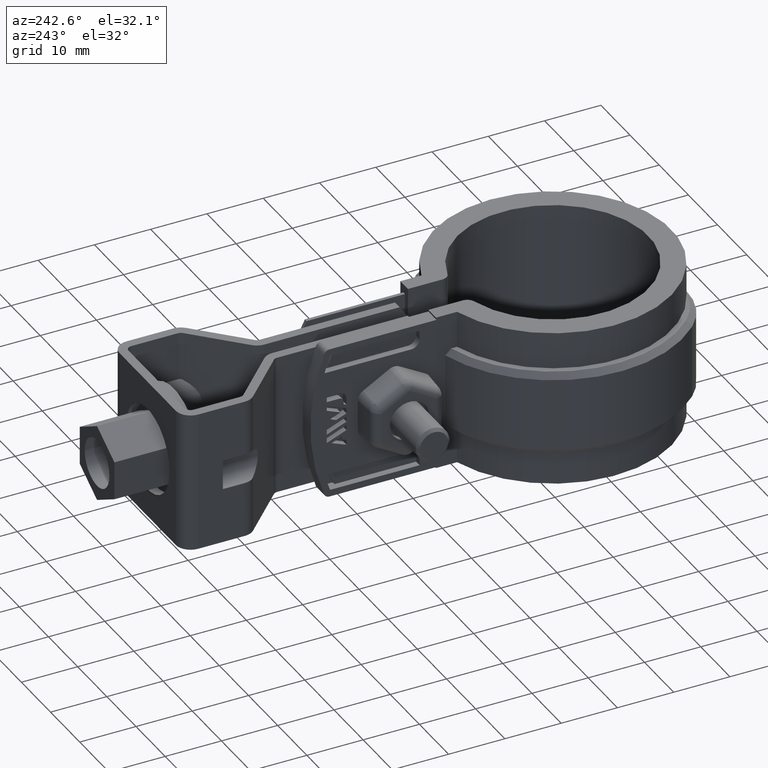
[diagram: clean part render]
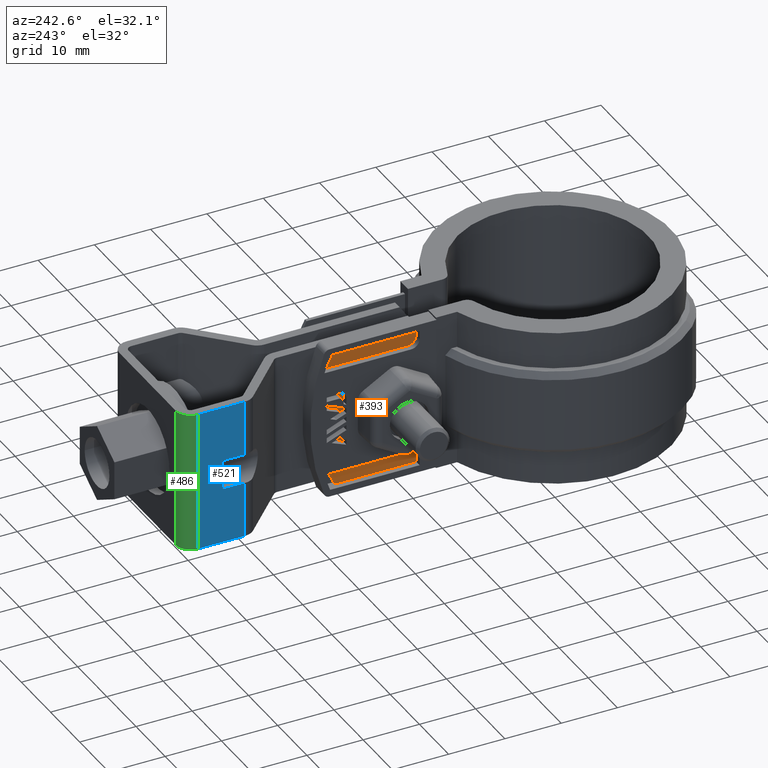
[diagram: same view with three faces highlighted in distinct colors, each labeled with its STEP entity id]
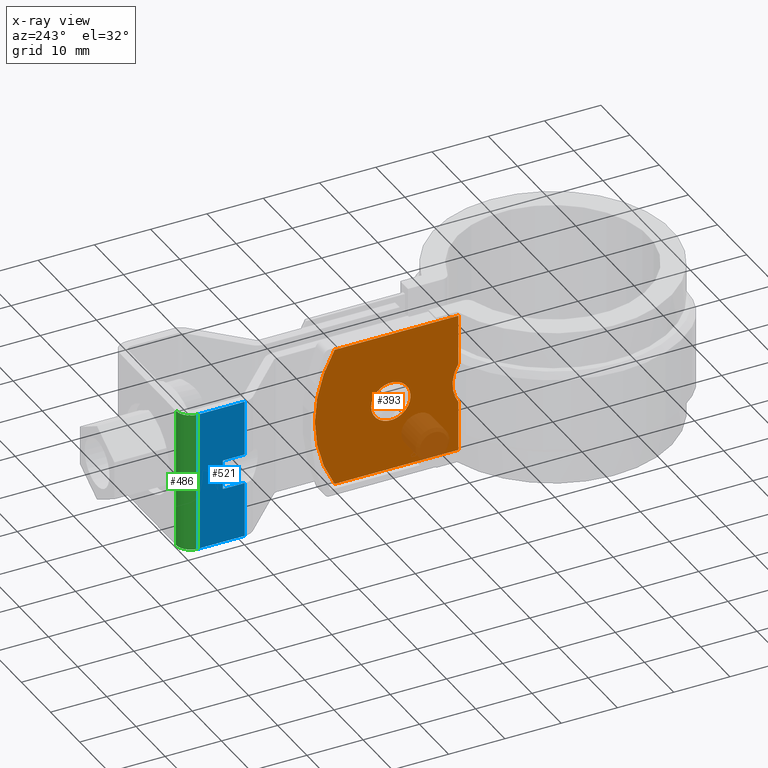
[diagram: x-ray of the same camera — body ghosted, the three highlighted faces saturated]
A machine part, auxiliary view with three faces highlighted in distinct colors.
The next image is the same camera in x-ray (body ghosted, the three faces saturated) — at least one of them is partly hidden behind the body in this view.
Their STEP definitions:

[orange] entity #393 — the highlighted planar face has unit normal (1, -0, 0).
#393 = ADVANCED_FACE( '', ( #757, #758 ), #759, .F. );
#757 = FACE_BOUND( '', #1658, .T. );
#758 = FACE_OUTER_BOUND( '', #1659, .T. );
#759 = PLANE( '', #1660 );
#1658 = EDGE_LOOP( '', ( #3246 ) );
#1659 = EDGE_LOOP( '', ( #3247, #3248, #3249, #3250, #3251, #3252 ) );
#1660 = AXIS2_PLACEMENT_3D( '', #3253, #3254, #3255 );
#3246 = ORIENTED_EDGE( '', *, *, #6229, .F. );
#3247 = ORIENTED_EDGE( '', *, *, #6161, .F. );
#3248 = ORIENTED_EDGE( '', *, *, #6220, .F. );
#3249 = ORIENTED_EDGE( '', *, *, #6135, .F. );
#3250 = ORIENTED_EDGE( '', *, *, #6235, .F. );
#3251 = ORIENTED_EDGE( '', *, *, #6236, .T. );
#3252 = ORIENTED_EDGE( '', *, *, #6237, .F. );
#3253 = CARTESIAN_POINT( '', ( -5.10000000000000, 44.9443584449264, 0.000000000000000 ) );
#3254 = DIRECTION( '', ( 1.00000000000000, -6.12303176911189E-017, 0.000000000000000 ) );
#3255 = DIRECTION( '', ( -6.12303176911189E-017, -1.00000000000000, 0.000000000000000 ) );
#6135 = EDGE_CURVE( '', #7073, #7076, #7077, .T. );
#6161 = EDGE_CURVE( '', #7121, #7123, #7124, .T. );
#6220 = EDGE_CURVE( '', #7076, #7121, #7223, .T. );
#6229 = EDGE_CURVE( '', #7233, #7233, #7234, .F. );
#6235 = EDGE_CURVE( '', #7243, #7073, #7244, .T. );
#6236 = EDGE_CURVE( '', #7243, #7245, #7246, .T. );
#6237 = EDGE_CURVE( '', #7123, #7245, #7247, .T. );
#7073 = VERTEX_POINT( '', #8736 );
#7076 = VERTEX_POINT( '', #8740 );
#7077 = LINE( '', #8741, #8742 );
#7121 = VERTEX_POINT( '', #8962 );
#7123 = VERTEX_POINT( '', #8977 );
#7124 = B_SPLINE_CURVE_WITH_KNOTS( '', 3, ( #8978, #8979, #8980, #8981, #8982, #8983, #8984, #8985, #8986, #8987, #8988, #8989, #8990, #8991, #8992, #8993 ), .UNSPECIFIED., .F., .F., ( 4, 2, 2, 2, 2, 2, 2, 4 ), ( 1.96177208071747E-016, 0.00184726520239956, 0.00277089780359924, 0.00369453040479891, 0.00461816300599859, 0.00554179560719827, 0.00646542820839795, 0.00738906080959763 ), .UNSPECIFIED. );
#7223 = LINE( '', #9513, #9514 );
#7233 = VERTEX_POINT( '', #9555 );
#7234 = CIRCLE( '', #9556, 3.50000000000000 );
#7243 = VERTEX_POINT( '', #9568 );
#7244 = CIRCLE( '', #9569, 24.0000000000000 );
#7245 = VERTEX_POINT( '', #9570 );
#7246 = LINE( '', #9571, #9572 );
#7247 = LINE( '', #9573, #9574 );
#8736 = CARTESIAN_POINT( '', ( -5.10000000000000, 41.4321596934742, -1.93352053625984E-031 ) );
#8740 = CARTESIAN_POINT( '', ( -5.10000000000000, 19.4422220952235, 0.000000000000000 ) );
#8741 = CARTESIAN_POINT( '', ( -5.10000000000000, 44.9443584449264, 0.000000000000000 ) );
#8742 = VECTOR( '', #12337, 1000.00000000000 );
#8962 = CARTESIAN_POINT( '', ( -5.10000000000000, 19.4422220952235, -8.96967133656879 ) );
#8977 = CARTESIAN_POINT( '', ( -5.10000000000000, 19.4422220952235, -16.0303286634310 ) );
#8978 = CARTESIAN_POINT( '', ( -5.10000000000000, 19.4422220952235, -8.96967133656900 ) );
#8979 = CARTESIAN_POINT( '', ( -5.10000000000000, 19.7801053416469, -9.49866425355646 ) );
#8980 = CARTESIAN_POINT( '', ( -5.10000000000004, 20.0328027913764, -10.0609986413887 ) );
#8981 = CARTESIAN_POINT( '', ( -5.10000000000004, 20.2940795166056, -10.9505948400188 ) );
#8982 = CARTESIAN_POINT( '', ( -5.10000000000000, 20.3614603303200, -11.2575212751323 ) );
#8983 = CARTESIAN_POINT( '', ( -5.10000000000000, 20.4512930233971, -11.8750756280531 ) );
#8984 = CARTESIAN_POINT( '', ( -5.09999999999999, 20.4739241329096, -12.1840525684141 ) );
#8985 = CARTESIAN_POINT( '', ( -5.09999999999999, 20.4745795553677, -12.8024063025310 ) );
#8986 = CARTESIAN_POINT( '', ( -5.10000000000000, 20.4525929326975, -13.1117831943132 ) );
#8987 = CARTESIAN_POINT( '', ( -5.10000000000000, 20.3637266687302, -13.7309393969547 ) );
#8988 = CARTESIAN_POINT( '', ( -5.10000000000002, 20.2971590065117, -14.0368590218155 ) );
#8989 = CARTESIAN_POINT( '', ( -5.10000000000001, 20.1236782689653, -14.6315694840107 ) );
#8990 = CARTESIAN_POINT( '', ( -5.09999999999999, 20.0165393108588, -14.9219946193762 ) );
#8991 = CARTESIAN_POINT( '', ( -5.09999999999999, 19.7606431259462, -15.4887057463865 ) );
#8992 = CARTESIAN_POINT( '', ( -5.10000000000000, 19.6111260462182, -15.7658911848843 ) );
#8993 = CARTESIAN_POINT( '', ( -5.10000000000000, 19.4422220952235, -16.0303286634310 ) );
#9513 = CARTESIAN_POINT( '', ( -5.10000000000000, 19.4422220952235, 0.000000000000000 ) );
#9514 = VECTOR( '', #12414, 1000.00000000000 );
#9555 = CARTESIAN_POINT( '', ( -5.10000000000000, 34.9443584449264, -12.5000000000000 ) );
#9556 = AXIS2_PLACEMENT_3D( '', #12424, #12425, #12426 );
#9568 = CARTESIAN_POINT( '', ( -5.10000000000000, 41.4321596934742, -25.0000000000000 ) );
#9569 = AXIS2_PLACEMENT_3D( '', #12436, #12437, #12438 );
#9570 = CARTESIAN_POINT( '', ( -5.10000000000000, 19.4422220952235, -25.0000000000000 ) );
#9571 = CARTESIAN_POINT( '', ( -5.10000000000000, 44.9443584449264, -25.0000000000000 ) );
#9572 = VECTOR( '', #12439, 1000.00000000000 );
#9573 = CARTESIAN_POINT( '', ( -5.10000000000000, 19.4422220952235, 0.000000000000000 ) );
#9574 = VECTOR( '', #12440, 1000.00000000000 );
#12337 = DIRECTION( '', ( -6.12303176911189E-017, -1.00000000000000, 0.000000000000000 ) );
#12414 = DIRECTION( '', ( 0.000000000000000, 0.000000000000000, -1.00000000000000 ) );
#12424 = CARTESIAN_POINT( '', ( -5.10000000000000, 31.4443584449264, -12.5000000000000 ) );
#12425 = DIRECTION( '', ( 1.00000000000000, -6.12303176911189E-017, 0.000000000000000 ) );
#12426 = DIRECTION( '', ( 6.12303176911189E-017, 1.00000000000000, 0.000000000000000 ) );
#12436 = CARTESIAN_POINT( '', ( -5.10000000000000, 20.9443584449264, -12.5000000000000 ) );
#12437 = DIRECTION( '', ( 1.00000000000000, -6.12303176911189E-017, 0.000000000000000 ) );
#12438 = DIRECTION( '', ( 6.12303176911189E-017, 1.00000000000000, 0.000000000000000 ) );
#12439 = DIRECTION( '', ( -6.12303176911189E-017, -1.00000000000000, 0.000000000000000 ) );
#12440 = DIRECTION( '', ( 0.000000000000000, 0.000000000000000, -1.00000000000000 ) );

[blue] entity #521 — the highlighted planar face has unit normal (-1, 0, 0).
#521 = ADVANCED_FACE( '', ( #1026 ), #1027, .T. );
#1026 = FACE_OUTER_BOUND( '', #2119, .T. );
#1027 = PLANE( '', #2120 );
#2119 = EDGE_LOOP( '', ( #4708, #4709, #4710, #4711, #4712, #4713, #4714, #4715 ) );
#2120 = AXIS2_PLACEMENT_3D( '', #4716, #4717, #4718 );
#4708 = ORIENTED_EDGE( '', *, *, #6602, .F. );
#4709 = ORIENTED_EDGE( '', *, *, #6574, .T. );
#4710 = ORIENTED_EDGE( '', *, *, #6576, .T. );
#4711 = ORIENTED_EDGE( '', *, *, #6571, .F. );
#4712 = ORIENTED_EDGE( '', *, *, #6578, .F. );
#4713 = ORIENTED_EDGE( '', *, *, #6496, .T. );
#4714 = ORIENTED_EDGE( '', *, *, #6503, .T. );
#4715 = ORIENTED_EDGE( '', *, *, #6596, .F. );
#4716 = CARTESIAN_POINT( '', ( -12.2499991410929, 61.1001656745214, 2.16587713042226E-006 ) );
#4717 = DIRECTION( '', ( -1.00000000000000, 6.88261999302233E-009, 4.22881814054226E-010 ) );
#4718 = DIRECTION( '', ( -6.88262000006329E-009, -1.00000000000000, -1.66499459745878E-008 ) );
#6496 = EDGE_CURVE( '', #7678, #7676, #7679, .T. );
#6503 = EDGE_CURVE( '', #7676, #7689, #7692, .T. );
#6571 = EDGE_CURVE( '', #7803, #7805, #7806, .T. );
#6574 = EDGE_CURVE( '', #7810, #7808, #7811, .T. );
#6576 = EDGE_CURVE( '', #7808, #7805, #7813, .T. );
#6578 = EDGE_CURVE( '', #7678, #7803, #7815, .T. );
#6596 = EDGE_CURVE( '', #7839, #7689, #7841, .T. );
#6602 = EDGE_CURVE( '', #7810, #7839, #7850, .T. );
#7676 = VERTEX_POINT( '', #10900 );
#7678 = VERTEX_POINT( '', #10902 );
#7679 = LINE( '', #10903, #10904 );
#7689 = VERTEX_POINT( '', #10917 );
#7692 = LINE( '', #10920, #10921 );
#7803 = VERTEX_POINT( '', #11106 );
#7805 = VERTEX_POINT( '', #11115 );
#7806 = LINE( '', #11116, #11117 );
#7808 = VERTEX_POINT( '', #11119 );
#7810 = VERTEX_POINT( '', #11121 );
#7811 = LINE( '', #11122, #11123 );
#7813 = LINE( '', #11134, #11135 );
#7815 = LINE( '', #11138, #11139 );
#7839 = VERTEX_POINT( '', #11175 );
#7841 = LINE( '', #11177, #11178 );
#7850 = LINE( '', #11189, #11190 );
#10900 = CARTESIAN_POINT( '', ( -12.2499990839383, 69.4043598754072, 2.30414151647374E-006 ) );
#10902 = CARTESIAN_POINT( '', ( -12.2499991410929, 61.1001656745214, 2.16587713042226E-006 ) );
#10903 = CARTESIAN_POINT( '', ( -12.2499991410929, 61.1001656745214, 2.16587713042226E-006 ) );
#10904 = VECTOR( '', #12789, 1000.00000000000 );
#10917 = CARTESIAN_POINT( '', ( -12.2499990945104, 69.4043602916559, -24.9999976958585 ) );
#10920 = CARTESIAN_POINT( '', ( -12.2499990839383, 69.4043598754072, 2.30414151647374E-006 ) );
#10921 = VECTOR( '', #12802, 1000.00000000000 );
#11106 = CARTESIAN_POINT( '', ( -12.2499991452583, 61.1001658385233, -9.84999783412289 ) );
#11115 = CARTESIAN_POINT( '', ( -12.2499991183873, 65.0043600394090, -9.84999776911827 ) );
#11116 = CARTESIAN_POINT( '', ( -12.2499991872135, 55.0043600394089, -9.84999793561774 ) );
#11117 = VECTOR( '', #12907, 1000.00000000000 );
#11119 = CARTESIAN_POINT( '', ( -12.2499991206285, 65.0043601276537, -15.1499977691182 ) );
#11121 = CARTESIAN_POINT( '', ( -12.2499991474996, 61.1001659267680, -15.1499978341229 ) );
#11122 = CARTESIAN_POINT( '', ( -12.2499991894547, 55.0043601276537, -15.1499979356177 ) );
#11123 = VECTOR( '', #12914, 1000.00000000000 );
#11134 = CARTESIAN_POINT( '', ( -12.2499991213051, 65.0043601542938, -16.7499977691182 ) );
#11135 = VECTOR( '', #12915, 1000.00000000000 );
#11138 = CARTESIAN_POINT( '', ( -12.2499991410929, 61.1001656745214, 2.16587713042226E-006 ) );
#11139 = VECTOR( '', #12917, 1000.00000000000 );
#11175 = CARTESIAN_POINT( '', ( -12.2499991516650, 61.1001660907700, -24.9999978341229 ) );
#11177 = CARTESIAN_POINT( '', ( -12.2499991516650, 61.1001660907700, -24.9999978341229 ) );
#11178 = VECTOR( '', #12945, 1000.00000000000 );
#11189 = CARTESIAN_POINT( '', ( -12.2499991410929, 61.1001656745214, 2.16587713042226E-006 ) );
#11190 = VECTOR( '', #12957, 1000.00000000000 );
#12789 = DIRECTION( '', ( 6.88262000006329E-009, 1.00000000000000, 1.66499459745878E-008 ) );
#12802 = DIRECTION( '', ( -4.22881699458974E-010, 1.66499459774983E-008, -1.00000000000000 ) );
#12907 = DIRECTION( '', ( 6.88262000006329E-009, 1.00000000000000, 1.66499459745878E-008 ) );
#12914 = DIRECTION( '', ( 6.88262000006329E-009, 1.00000000000000, 1.66499459745878E-008 ) );
#12915 = DIRECTION( '', ( 4.22881697608438E-010, -1.66499459774983E-008, 1.00000000000000 ) );
#12917 = DIRECTION( '', ( -4.22881699458974E-010, 1.66499459774983E-008, -1.00000000000000 ) );
#12945 = DIRECTION( '', ( 6.88262000006329E-009, 1.00000000000000, 1.66499459745878E-008 ) );
#12957 = DIRECTION( '', ( -4.22881699458974E-010, 1.66499459774983E-008, -1.00000000000000 ) );

[green] entity #486 — the highlighted cylindrical surface (edge-blend (fillet) strip) has radius 2.6 mm, axis along (0, -0, 1).
#486 = ADVANCED_FACE( '', ( #949 ), #950, .T. );
#949 = FACE_OUTER_BOUND( '', #2042, .T. );
#950 = CYLINDRICAL_SURFACE( '', #2043, 2.60000000000000 );
#2042 = EDGE_LOOP( '', ( #4406, #4407, #4408, #4409 ) );
#2043 = AXIS2_PLACEMENT_3D( '', #4410, #4411, #4412 );
#4406 = ORIENTED_EDGE( '', *, *, #6502, .F. );
#4407 = ORIENTED_EDGE( '', *, *, #6503, .F. );
#4408 = ORIENTED_EDGE( '', *, *, #6495, .T. );
#4409 = ORIENTED_EDGE( '', *, *, #6504, .T. );
#4410 = CARTESIAN_POINT( '', ( -9.64999908393835, 69.4043598575124, 2.30304202097908E-006 ) );
#4411 = DIRECTION( '', ( 4.22881699458974E-010, -1.66499459774983E-008, 1.00000000000000 ) );
#4412 = DIRECTION( '', ( 6.88262000006329E-009, 1.00000000000000, 1.66499459745878E-008 ) );
#6495 = EDGE_CURVE( '', #7676, #7674, #7677, .T. );
#6502 = EDGE_CURVE( '', #7689, #7690, #7691, .T. );
#6503 = EDGE_CURVE( '', #7676, #7689, #7692, .T. );
#6504 = EDGE_CURVE( '', #7674, #7690, #7693, .T. );
#7674 = VERTEX_POINT( '', #10897 );
#7676 = VERTEX_POINT( '', #10900 );
#7677 = CIRCLE( '', #10901, 2.60000000000000 );
#7689 = VERTEX_POINT( '', #10917 );
#7690 = VERTEX_POINT( '', #10918 );
#7691 = CIRCLE( '', #10919, 2.60000000000000 );
#7692 = LINE( '', #10920, #10921 );
#7693 = LINE( '', #10922, #10923 );
#10897 = CARTESIAN_POINT( '', ( -9.64999906604353, 72.0043598575124, 2.34633187878863E-006 ) );
#10900 = CARTESIAN_POINT( '', ( -12.2499990839383, 69.4043598754072, 2.30414151647374E-006 ) );
#10901 = AXIS2_PLACEMENT_3D( '', #12786, #12787, #12788 );
#10917 = CARTESIAN_POINT( '', ( -12.2499990945104, 69.4043602916559, -24.9999976958585 ) );
#10918 = CARTESIAN_POINT( '', ( -9.64999907661557, 72.0043602737611, -24.9999976536681 ) );
#10919 = AXIS2_PLACEMENT_3D( '', #12799, #12800, #12801 );
#10920 = CARTESIAN_POINT( '', ( -12.2499990839383, 69.4043598754072, 2.30414151647374E-006 ) );
#10921 = VECTOR( '', #12802, 1000.00000000000 );
#10922 = CARTESIAN_POINT( '', ( -9.64999906604353, 72.0043598575124, 2.34633187878863E-006 ) );
#10923 = VECTOR( '', #12803, 1000.00000000000 );
#12786 = CARTESIAN_POINT( '', ( -9.64999908393835, 69.4043598575124, 2.30304202097908E-006 ) );
#12787 = DIRECTION( '', ( -4.22881699458974E-010, 1.66499459774983E-008, -1.00000000000000 ) );
#12788 = DIRECTION( '', ( -1.00000000000000, 6.88261999302233E-009, 4.22881814054225E-010 ) );
#12799 = CARTESIAN_POINT( '', ( -9.64999909451039, 69.4043602737611, -24.9999976969580 ) );
#12800 = DIRECTION( '', ( -4.22881699458974E-010, 1.66499459774983E-008, -1.00000000000000 ) );
#12801 = DIRECTION( '', ( -1.00000000000000, 6.88261999302233E-009, 4.22881814054225E-010 ) );
#12802 = DIRECTION( '', ( -4.22881699458974E-010, 1.66499459774983E-008, -1.00000000000000 ) );
#12803 = DIRECTION( '', ( -4.22881699458974E-010, 1.66499459774983E-008, -1.00000000000000 ) );